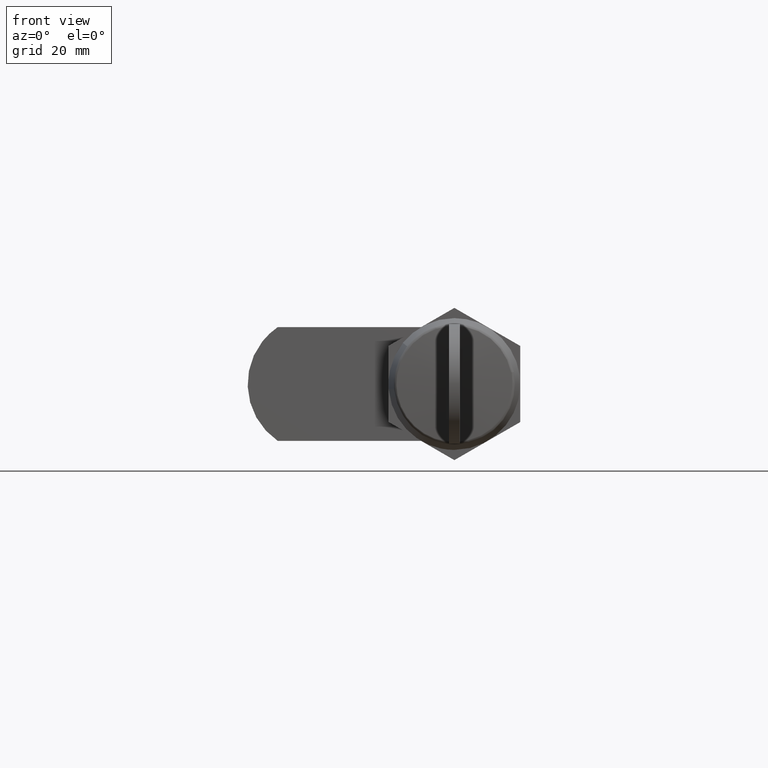
[diagram: clean part render]
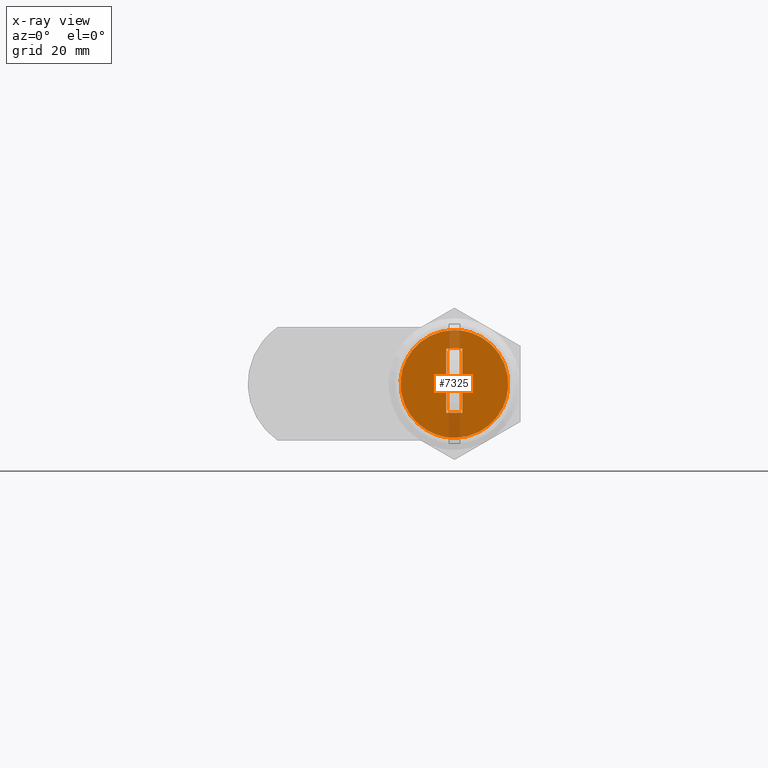
[diagram: x-ray — body ghosted, one internal face saturated and labeled with its STEP entity id]
A machine part, front view, then the same camera in x-ray: the body is ghosted and one INTERNAL B-rep face — a face not visible from any outside direction — is saturated and labeled: STEP entity #7325.
In plain terms, the highlighted face is a freeform B-spline surface patch.
Its self-contained STEP definition (entity closure, byte-faithful):
#6438=CARTESIAN_POINT('',(2.001256000000000,0.0,-9.0));
#6439=VERTEX_POINT('',#6438);
#6440=CARTESIAN_POINT('',(2.001256000000000,-8.972256003591486,-0.706131861635262));
#6441=VERTEX_POINT('',#6440);
#6442=CARTESIAN_POINT('',(2.001256000000000,0.0,-9.0));
#6443=CARTESIAN_POINT('',(2.001256000000000,-8.319514424766386,-9.000000000000002));
#6444=CARTESIAN_POINT('',(2.001255999999999,-8.972256003591486,-0.706131861635262));
#6452=(BOUNDED_CURVE()B_SPLINE_CURVE(2,(#6442,#6443,#6444),.UNSPECIFIED.,.F.,.U.)B_SPLINE_CURVE_WITH_KNOTS((3,3),(0.0,0.236331300629532),.UNSPECIFIED.)CURVE()GEOMETRIC_REPRESENTATION_ITEM()RATIONAL_B_SPLINE_CURVE((1.0,0.723120658608987,0.969723356165065))REPRESENTATION_ITEM(''));
#6453=EDGE_CURVE('',#6439,#6441,#6452,.T.);
#6494=CARTESIAN_POINT('',(2.001256000000000,8.972256003591486,0.706131861635263));
#6495=VERTEX_POINT('',#6494);
#6501=CARTESIAN_POINT('',(2.001256000000000,8.972256003591486,0.706131861635263));
#6502=CARTESIAN_POINT('',(2.001256000000000,8.999999999999998,0.353610963154076));
#6503=CARTESIAN_POINT('',(2.001256000000000,9.0,0.0));
#6504=CARTESIAN_POINT('',(2.001256000000000,9.0,-9.0));
#6505=CARTESIAN_POINT('',(2.001256000000000,0.0,-9.0));
#6513=(BOUNDED_CURVE()B_SPLINE_CURVE(2,(#6501,#6502,#6503,#6504,#6505),.UNSPECIFIED.,.F.,.U.)B_SPLINE_CURVE_WITH_KNOTS((3,2,3),(0.736331300629532,0.750000000000000,1.0),.UNSPECIFIED.)CURVE()GEOMETRIC_REPRESENTATION_ITEM()RATIONAL_B_SPLINE_CURVE((0.969723356165065,0.983986122577561,1.0,0.707106781186547,1.0))REPRESENTATION_ITEM(''));
#6514=EDGE_CURVE('',#6495,#6439,#6513,.T.);
#6537=CARTESIAN_POINT('',(2.001256000000000,0.0,9.0));
#6538=VERTEX_POINT('',#6537);
#6539=CARTESIAN_POINT('',(2.001255999999999,-8.972256003591486,-0.706131861635262));
#6540=CARTESIAN_POINT('',(2.001256000000000,-9.0,-0.353610963154075));
#6541=CARTESIAN_POINT('',(2.001256000000000,-9.0,0.0));
#6542=CARTESIAN_POINT('',(2.001256000000000,-9.0,9.0));
#6543=CARTESIAN_POINT('',(2.001256000000000,0.0,9.0));
#6551=(BOUNDED_CURVE()B_SPLINE_CURVE(2,(#6539,#6540,#6541,#6542,#6543),.UNSPECIFIED.,.F.,.U.)B_SPLINE_CURVE_WITH_KNOTS((3,2,3),(0.236331300629532,0.250000000000000,0.500000000000000),.UNSPECIFIED.)CURVE()GEOMETRIC_REPRESENTATION_ITEM()RATIONAL_B_SPLINE_CURVE((0.969723356165065,0.983986122577561,1.0,0.707106781186547,1.0))REPRESENTATION_ITEM(''));
#6552=EDGE_CURVE('',#6441,#6538,#6551,.T.);
#6554=CARTESIAN_POINT('',(2.001256000000000,0.0,9.0));
#6555=CARTESIAN_POINT('',(2.001255999999999,8.319514424766330,9.0));
#6556=CARTESIAN_POINT('',(2.001255999999999,8.972256003591486,0.706131861635263));
#6564=(BOUNDED_CURVE()B_SPLINE_CURVE(2,(#6554,#6555,#6556),.UNSPECIFIED.,.F.,.U.)B_SPLINE_CURVE_WITH_KNOTS((3,3),(0.500000000000000,0.736331300629531),.UNSPECIFIED.)CURVE()GEOMETRIC_REPRESENTATION_ITEM()RATIONAL_B_SPLINE_CURVE((1.0,0.723120658608988,0.969723356165062))REPRESENTATION_ITEM(''));
#6565=EDGE_CURVE('',#6538,#6495,#6564,.T.);
#7261=CARTESIAN_POINT('',(2.001256000000000,1.350000000000000,-4.800000000000099));
#7262=VERTEX_POINT('',#7261);
#7263=CARTESIAN_POINT('',(2.001256000000000,-1.350000000000000,-4.800000000000099));
#7264=VERTEX_POINT('',#7263);
#7265=CARTESIAN_POINT('',(2.001256000000000,1.350000000000000,-4.800000000000099));
#7266=CARTESIAN_POINT('',(2.001256000000000,-1.350000000000000,-4.800000000000099));
#7267=QUASI_UNIFORM_CURVE('',1,(#7265,#7266),.UNSPECIFIED.,.F.,.U.);
#7268=EDGE_CURVE('',#7262,#7264,#7267,.T.);
#7284=CARTESIAN_POINT('',(2.001256000000000,9.896352774541443,9.899099965112509));
#7285=CARTESIAN_POINT('',(2.001256000000000,-9.896353257339065,9.899099965112507));
#7286=CARTESIAN_POINT('',(2.001256000000000,9.896352774541443,-9.899100447910131));
#7287=CARTESIAN_POINT('',(2.001256000000000,-9.896353257339065,-9.899100447910129));
#7288=B_SPLINE_SURFACE_WITH_KNOTS('',1,1,((#7284,#7286),(#7285,#7287)),.UNSPECIFIED.,.F.,.F.,.U.,(2,2),(2,2),(0.0,19.792706031880510),(0.0,19.798200413022641),.UNSPECIFIED.);
#7289=ORIENTED_EDGE('',*,*,#6514,.F.);
#7290=ORIENTED_EDGE('',*,*,#6565,.F.);
#7291=ORIENTED_EDGE('',*,*,#6552,.F.);
#7292=ORIENTED_EDGE('',*,*,#6453,.F.);
#7293=EDGE_LOOP('',(#7289,#7290,#7291,#7292));
#7294=FACE_OUTER_BOUND('',#7293,.T.);
#7295=CARTESIAN_POINT('',(2.001256000000000,-1.350000000000000,5.846152580971530));
#7296=VERTEX_POINT('',#7295);
#7297=CARTESIAN_POINT('',(2.001256000000000,-1.350000000000000,-4.800000000000099));
#7298=CARTESIAN_POINT('',(2.001256000000000,-1.350000000000000,5.846152580971530));
#7299=QUASI_UNIFORM_CURVE('',1,(#7297,#7298),.UNSPECIFIED.,.F.,.U.);
#7300=EDGE_CURVE('',#7264,#7296,#7299,.T.);
#7301=ORIENTED_EDGE('',*,*,#7300,.T.);
#7302=CARTESIAN_POINT('',(2.001256000000000,1.350000000000000,5.846152580971530));
#7303=VERTEX_POINT('',#7302);
#7304=CARTESIAN_POINT('',(2.001256000000000,-1.349999999999999,5.846152580971523));
#7305=CARTESIAN_POINT('',(2.001256000000000,0.0,6.157896069489425));
#7306=CARTESIAN_POINT('',(2.001256000000000,1.349999999999997,5.846152580971523));
#7314=(BOUNDED_CURVE()B_SPLINE_CURVE(2,(#7304,#7305,#7306),.UNSPECIFIED.,.F.,.U.)CURVE()GEOMETRIC_REPRESENTATION_ITEM()QUASI_UNIFORM_CURVE()RATIONAL_B_SPLINE_CURVE((1.0,0.974358763495254,1.0))REPRESENTATION_ITEM(''));
#7315=EDGE_CURVE('',#7296,#7303,#7314,.T.);
#7316=ORIENTED_EDGE('',*,*,#7315,.T.);
#7317=CARTESIAN_POINT('',(2.001256000000000,1.350000000000000,5.846152580971530));
#7318=CARTESIAN_POINT('',(2.001256000000000,1.350000000000000,-4.800000000000099));
#7319=QUASI_UNIFORM_CURVE('',1,(#7317,#7318),.UNSPECIFIED.,.F.,.U.);
#7320=EDGE_CURVE('',#7303,#7262,#7319,.T.);
#7321=ORIENTED_EDGE('',*,*,#7320,.T.);
#7322=ORIENTED_EDGE('',*,*,#7268,.T.);
#7323=EDGE_LOOP('',(#7301,#7316,#7321,#7322));
#7324=FACE_BOUND('',#7323,.T.);
#7325=ADVANCED_FACE('',(#7294,#7324),#7288,.T.);